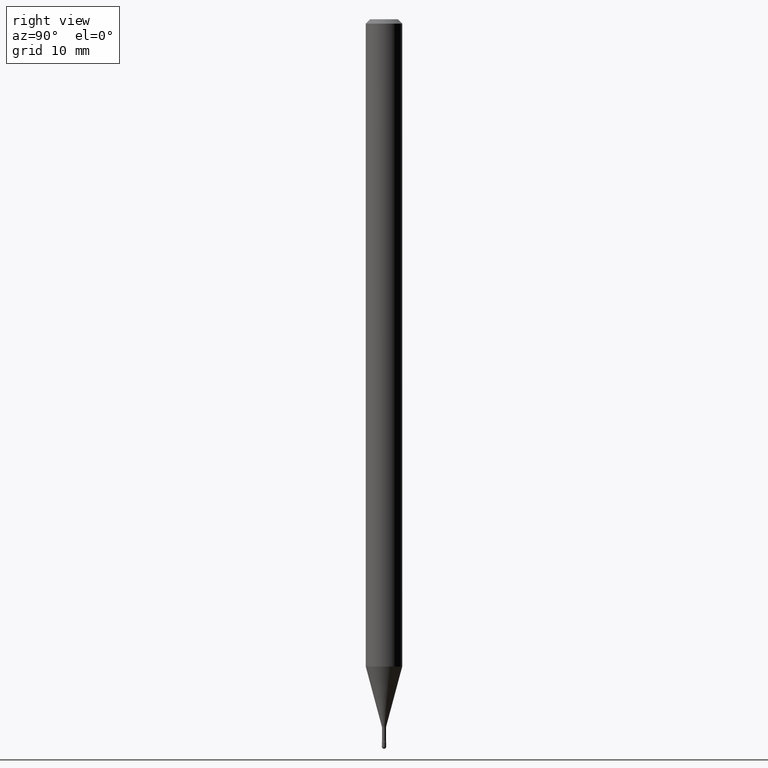
[diagram: clean part render]
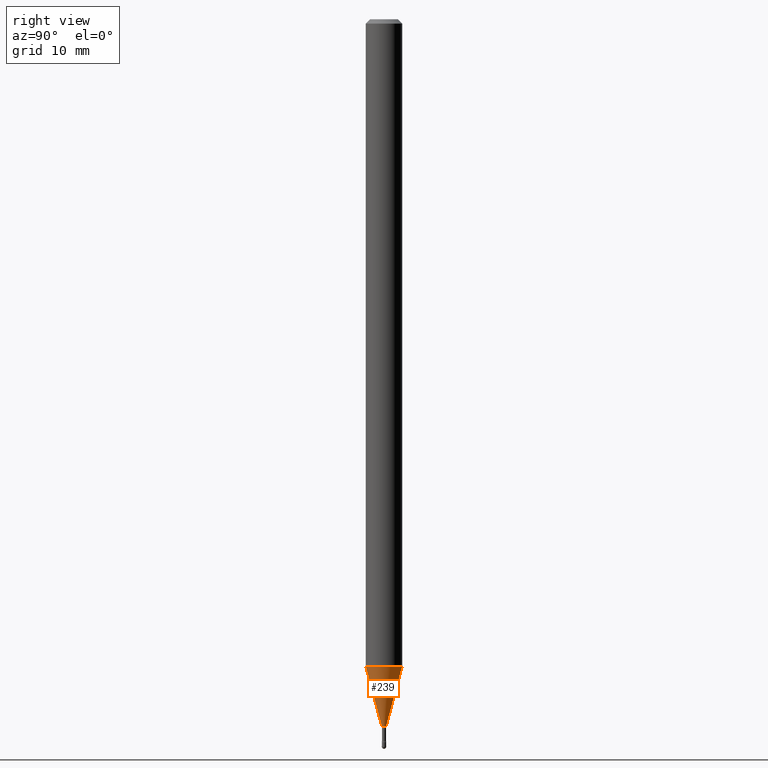
[diagram: same view with one face highlighted and labeled with its STEP entity id]
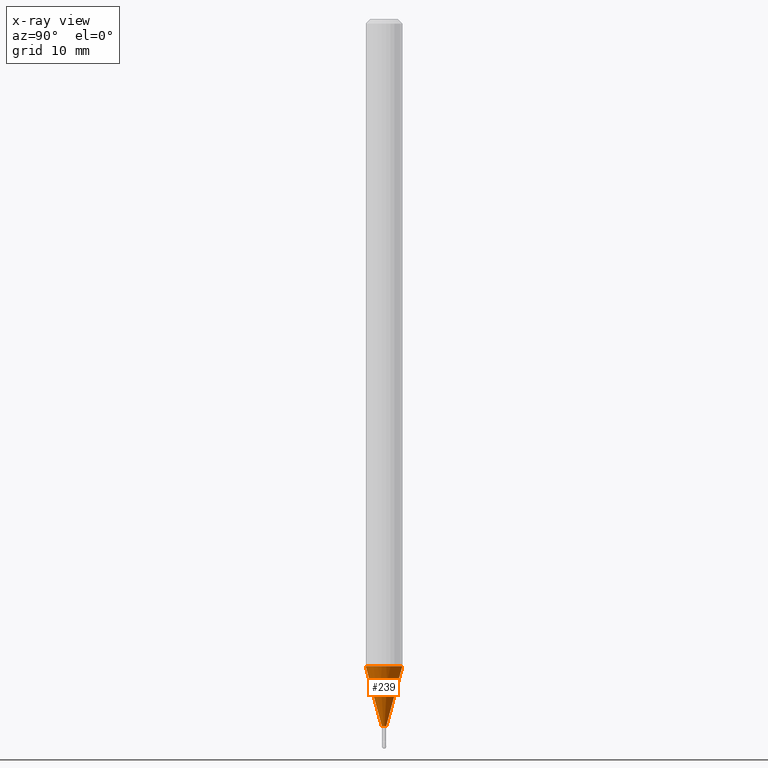
[diagram: x-ray of the same camera — body ghosted, the highlighted face saturated]
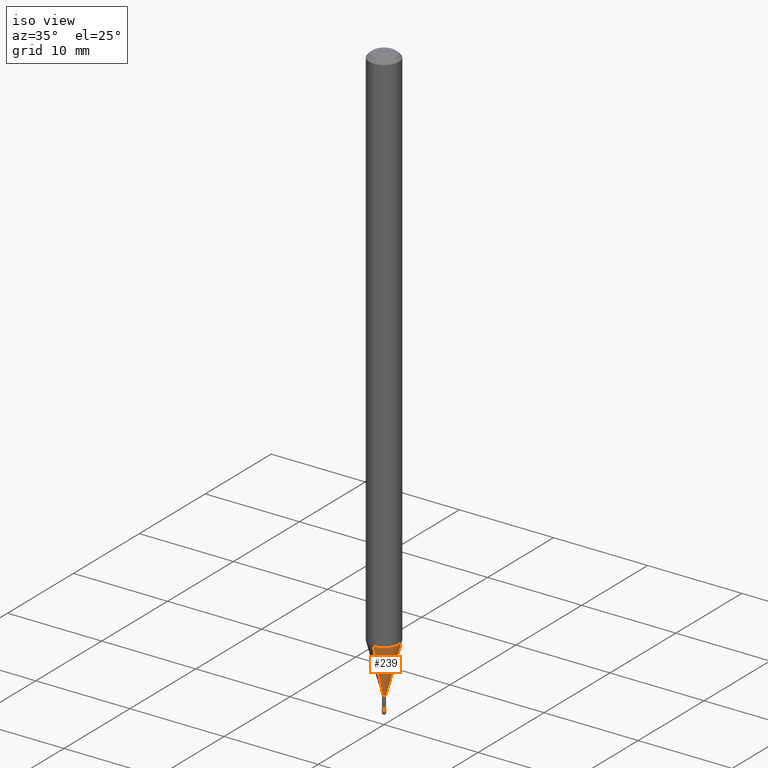
[diagram: same view with one face highlighted and labeled with its STEP entity id]
A machine part, right view. The second image highlights one B-rep face of the part: STEP entity #239.
The next image is the same camera in x-ray: the body ghosted, the highlighted face saturated — about 0% of this face is hidden behind the body in this view.
A second angle (iso view) of the same face is appended — the face is thin or edge-on in the first view.
In plain terms, the highlighted conical surface has half-angle 15 deg.
Its self-contained STEP definition (entity closure, byte-faithful):
#2 = VERTEX_POINT ( 'NONE', #471 ) ;
#21 = VERTEX_POINT ( 'NONE', #461 ) ;
#24 = LINE ( 'NONE', #112, #264 ) ;
#30 = DIRECTION ( 'NONE',  ( -6.982962677686265922E-15, -1.000000000000000000, 0.000000000000000000 ) ) ;
#39 = VERTEX_POINT ( 'NONE', #119 ) ;
#40 = LINE ( 'NONE', #89, #378 ) ;
#41 = ORIENTED_EDGE ( 'NONE', *, *, #305, .T. ) ;
#77 = CARTESIAN_POINT ( 'NONE',  ( 5.925516275079333066E-29, -8.460298037723782281E-15, -2.423092501787273534 ) ) ;
#83 = CARTESIAN_POINT ( 'NONE',  ( -4.364351673553374845E-16, -0.06250000000000775768, -2.218057782720305848 ) ) ;
#87 = EDGE_CURVE ( 'NONE', #267, #21, #171, .T. ) ;
#89 = CARTESIAN_POINT ( 'NONE',  ( 5.372493636224590218E-17, 0.007561112605655521436, -2.423092501787273534 ) ) ;
#97 = AXIS2_PLACEMENT_3D ( 'NONE', #250, #300, #161 ) ;
#103 = DIRECTION ( 'NONE',  ( -1.807323732225327378E-15, -0.2588190451025177974, 0.9659258262890690894 ) ) ;
#112 = CARTESIAN_POINT ( 'NONE',  ( -5.279896712707547694E-17, -0.007561112605672441929, -2.423092501787273534 ) ) ;
#119 = CARTESIAN_POINT ( 'NONE',  ( 2.489070731061815457E-16, 0.007561112605655522304, -2.423092501787273534 ) ) ;
#126 = ORIENTED_EDGE ( 'NONE', *, *, #222, .T. ) ;
#127 = EDGE_LOOP ( 'NONE', ( #41, #126, #329, #332 ) ) ;
#150 = DIRECTION ( 'NONE',  ( -2.445435438683695197E-29, 3.491529123004369972E-15, 1.000000000000000000 ) ) ;
#161 = DIRECTION ( 'NONE',  ( -6.982962677686265922E-15, -1.000000000000000000, 0.000000000000000000 ) ) ;
#171 = CIRCLE ( 'NONE', #317, 0.06250000000000000000 ) ;
#186 = DIRECTION ( 'NONE',  ( -6.982962677686265922E-15, -1.000000000000000000, 4.370956789862821150E-15 ) ) ;
#222 = EDGE_CURVE ( 'NONE', #39, #21, #40, .T. ) ;
#238 = CIRCLE ( 'NONE', #467, 0.007561112605663981683 ) ;
#239 = ADVANCED_FACE ( 'NONE', ( #527 ), #455, .T. ) ;
#250 = CARTESIAN_POINT ( 'NONE',  ( 5.925516275079333066E-29, -8.460298037723782281E-15, -2.423092501787273534 ) ) ;
#264 = VECTOR ( 'NONE', #103, 39.37007874015748143 ) ;
#267 = VERTEX_POINT ( 'NONE', #83 ) ;
#300 = DIRECTION ( 'NONE',  ( -2.445435438683695197E-29, 3.491529123004369972E-15, 1.000000000000000000 ) ) ;
#305 = EDGE_CURVE ( 'NONE', #2, #39, #238, .T. ) ;
#317 = AXIS2_PLACEMENT_3D ( 'NONE', #445, #150, #186 ) ;
#329 = ORIENTED_EDGE ( 'NONE', *, *, #87, .F. ) ;
#332 = ORIENTED_EDGE ( 'NONE', *, *, #531, .F. ) ;
#378 = VECTOR ( 'NONE', #515, 39.37007874015748854 ) ;
#445 = CARTESIAN_POINT ( 'NONE',  ( 5.424117106912415965E-29, -7.744413344874448194E-15, -2.218057782720306292 ) ) ;
#455 = CONICAL_SURFACE ( 'NONE', #97, 0.007561112605663981683, 0.2617993877991498519 ) ;
#461 = CARTESIAN_POINT ( 'NONE',  ( 4.440892098501166531E-16, 0.06249999999999225619, -2.218057782720306736 ) ) ;
#467 = AXIS2_PLACEMENT_3D ( 'NONE', #77, #510, #30 ) ;
#471 = CARTESIAN_POINT ( 'NONE',  ( -5.279896712707547694E-17, -0.007561112605672441929, -2.423092501787273534 ) ) ;
#510 = DIRECTION ( 'NONE',  ( -2.445435438683695197E-29, 3.491529123004369972E-15, 1.000000000000000000 ) ) ;
#515 = DIRECTION ( 'NONE',  ( 1.839019923739597160E-15, 0.2588190451025245142, 0.9659258262890670910 ) ) ;
#527 = FACE_OUTER_BOUND ( 'NONE', #127, .T. ) ;
#531 = EDGE_CURVE ( 'NONE', #2, #267, #24, .T. ) ;